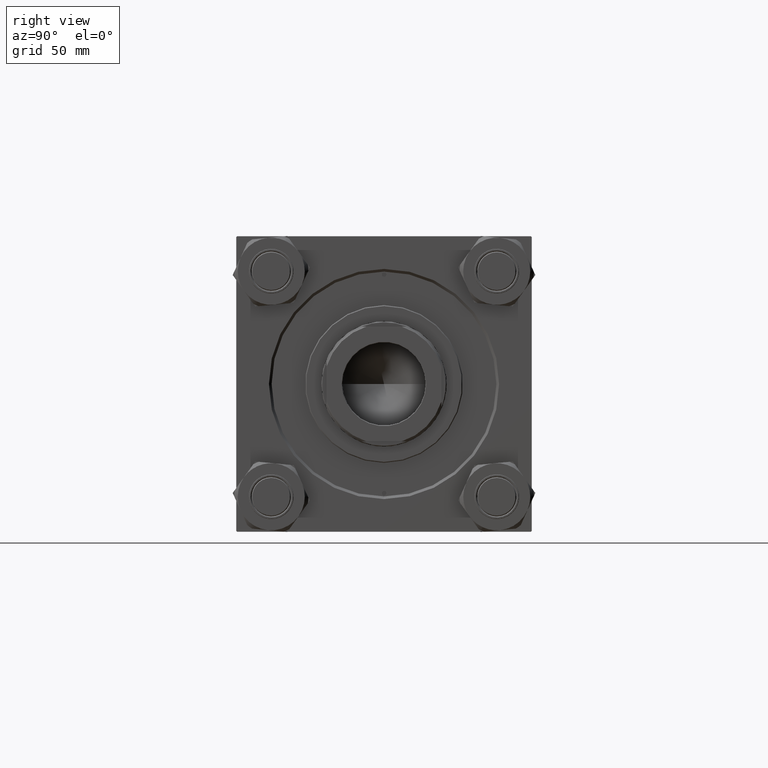
[diagram: clean part render]
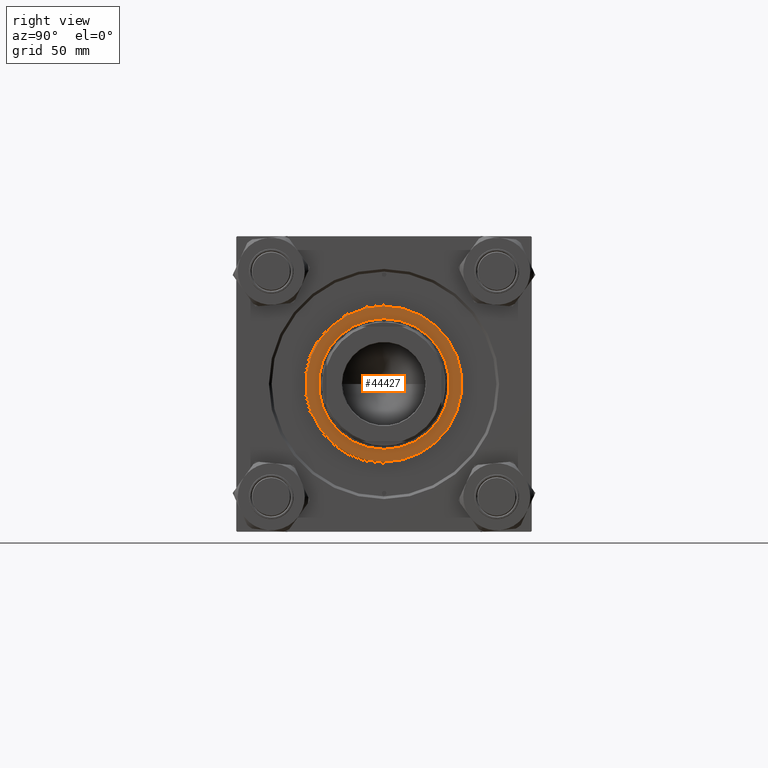
[diagram: same view with one face highlighted and labeled with its STEP entity id]
A machine part, right view. The second image highlights one B-rep face of the part: STEP entity #44427.
In plain terms, the highlighted planar face has unit normal (1, 0, -0).
Its self-contained STEP definition (entity closure, byte-faithful):
#1149 = CARTESIAN_POINT ( 'NONE',  ( 0.000000000000000000, 0.000000000000000000, 38.69999999999999574 ) ) ;
#1524 = CIRCLE ( 'NONE', #44702, 43.50000000000001421 ) ;
#1878 = FACE_BOUND ( 'NONE', #25523, .T. ) ;
#2365 = CARTESIAN_POINT ( 'NONE',  ( -36.50000000000000000, 4.469960816887838430E-15, 38.69999999999999574 ) ) ;
#2570 = CIRCLE ( 'NONE', #13119, 36.50000000000000000 ) ;
#2767 = AXIS2_PLACEMENT_3D ( 'NONE', #44973, #14847, #50317 ) ;
#3545 = DIRECTION ( 'NONE',  ( 0.000000000000000000, 0.000000000000000000, 1.000000000000000000 ) ) ;
#4832 = VERTEX_POINT ( 'NONE', #39686 ) ;
#8225 = EDGE_CURVE ( 'NONE', #8338, #43610, #2570, .T. ) ;
#8338 = VERTEX_POINT ( 'NONE', #26345 ) ;
#9044 = DIRECTION ( 'NONE',  ( 1.000000000000000000, 0.000000000000000000, 0.000000000000000000 ) ) ;
#10864 = CIRCLE ( 'NONE', #46747, 43.50000000000001421 ) ;
#11907 = CIRCLE ( 'NONE', #28232, 36.50000000000000000 ) ;
#13119 = AXIS2_PLACEMENT_3D ( 'NONE', #24840, #40129, #15714 ) ;
#13841 = FACE_OUTER_BOUND ( 'NONE', #28493, .T. ) ;
#14847 = DIRECTION ( 'NONE',  ( 0.000000000000000000, 0.000000000000000000, 1.000000000000000000 ) ) ;
#15714 = DIRECTION ( 'NONE',  ( 1.000000000000000000, 0.000000000000000000, 0.000000000000000000 ) ) ;
#21041 = DIRECTION ( 'NONE',  ( 0.000000000000000000, 0.000000000000000000, 1.000000000000000000 ) ) ;
#23327 = EDGE_CURVE ( 'NONE', #43610, #8338, #11907, .T. ) ;
#24840 = CARTESIAN_POINT ( 'NONE',  ( 0.000000000000000000, 0.000000000000000000, 38.69999999999999574 ) ) ;
#25523 = EDGE_LOOP ( 'NONE', ( #27028, #34600 ) ) ;
#26243 = DIRECTION ( 'NONE',  ( 1.000000000000000000, 0.000000000000000000, 0.000000000000000000 ) ) ;
#26345 = CARTESIAN_POINT ( 'NONE',  ( 36.50000000000000000, 0.000000000000000000, 38.69999999999999574 ) ) ;
#27028 = ORIENTED_EDGE ( 'NONE', *, *, #8225, .F. ) ;
#28232 = AXIS2_PLACEMENT_3D ( 'NONE', #33896, #49457, #26243 ) ;
#28493 = EDGE_LOOP ( 'NONE', ( #44389, #47092 ) ) ;
#29419 = PLANE ( 'NONE',  #2767 ) ;
#30846 = DIRECTION ( 'NONE',  ( 1.000000000000000000, 0.000000000000000000, 0.000000000000000000 ) ) ;
#32905 = EDGE_CURVE ( 'NONE', #45654, #4832, #1524, .T. ) ;
#33896 = CARTESIAN_POINT ( 'NONE',  ( 0.000000000000000000, 0.000000000000000000, 38.69999999999999574 ) ) ;
#34600 = ORIENTED_EDGE ( 'NONE', *, *, #23327, .F. ) ;
#35277 = CARTESIAN_POINT ( 'NONE',  ( -43.50000000000001421, 0.000000000000000000, 38.69999999999999574 ) ) ;
#39686 = CARTESIAN_POINT ( 'NONE',  ( 43.50000000000001421, 5.357829746269670620E-15, 38.69999999999999574 ) ) ;
#40129 = DIRECTION ( 'NONE',  ( 0.000000000000000000, 0.000000000000000000, 1.000000000000000000 ) ) ;
#43610 = VERTEX_POINT ( 'NONE', #2365 ) ;
#44389 = ORIENTED_EDGE ( 'NONE', *, *, #32905, .T. ) ;
#44427 = ADVANCED_FACE ( 'NONE', ( #1878, #13841 ), #29419, .T. ) ;
#44702 = AXIS2_PLACEMENT_3D ( 'NONE', #1149, #21041, #9044 ) ;
#44973 = CARTESIAN_POINT ( 'NONE',  ( 0.000000000000000000, 0.000000000000000000, 38.69999999999999574 ) ) ;
#45654 = VERTEX_POINT ( 'NONE', #35277 ) ;
#46747 = AXIS2_PLACEMENT_3D ( 'NONE', #50483, #3545, #30846 ) ;
#47023 = EDGE_CURVE ( 'NONE', #4832, #45654, #10864, .T. ) ;
#47092 = ORIENTED_EDGE ( 'NONE', *, *, #47023, .T. ) ;
#49457 = DIRECTION ( 'NONE',  ( 0.000000000000000000, 0.000000000000000000, 1.000000000000000000 ) ) ;
#50317 = DIRECTION ( 'NONE',  ( 1.000000000000000000, 0.000000000000000000, -0.000000000000000000 ) ) ;
#50483 = CARTESIAN_POINT ( 'NONE',  ( 0.000000000000000000, 0.000000000000000000, 38.69999999999999574 ) ) ;